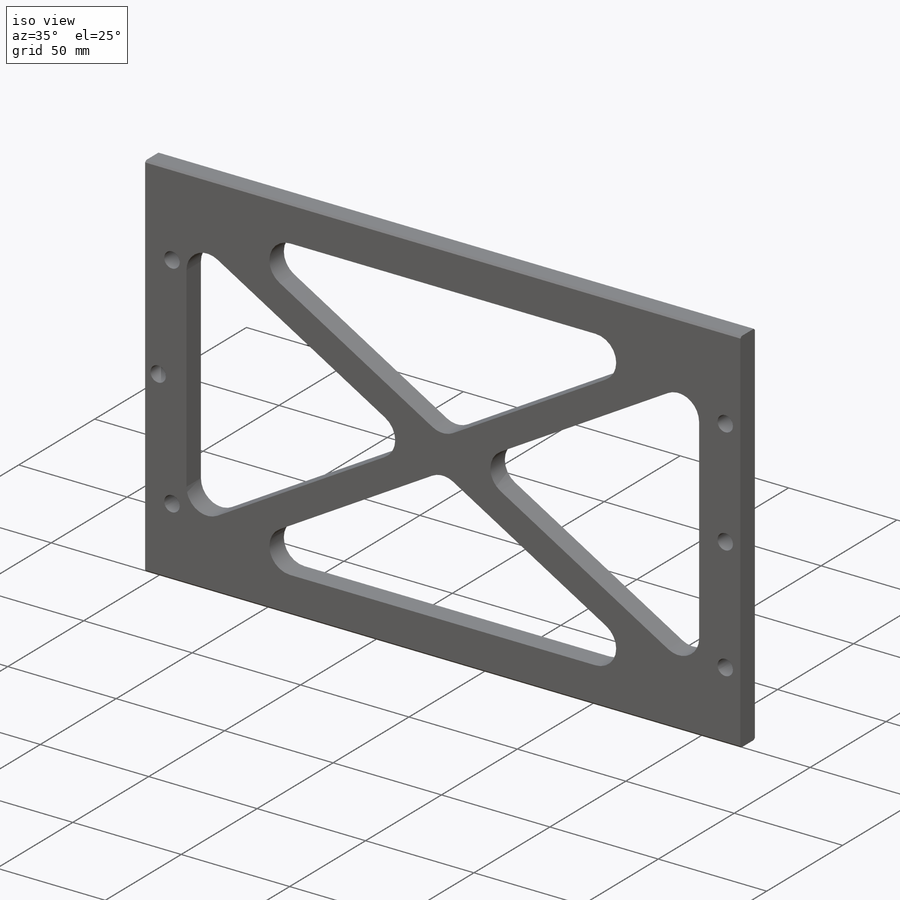
[diagram: iso view]
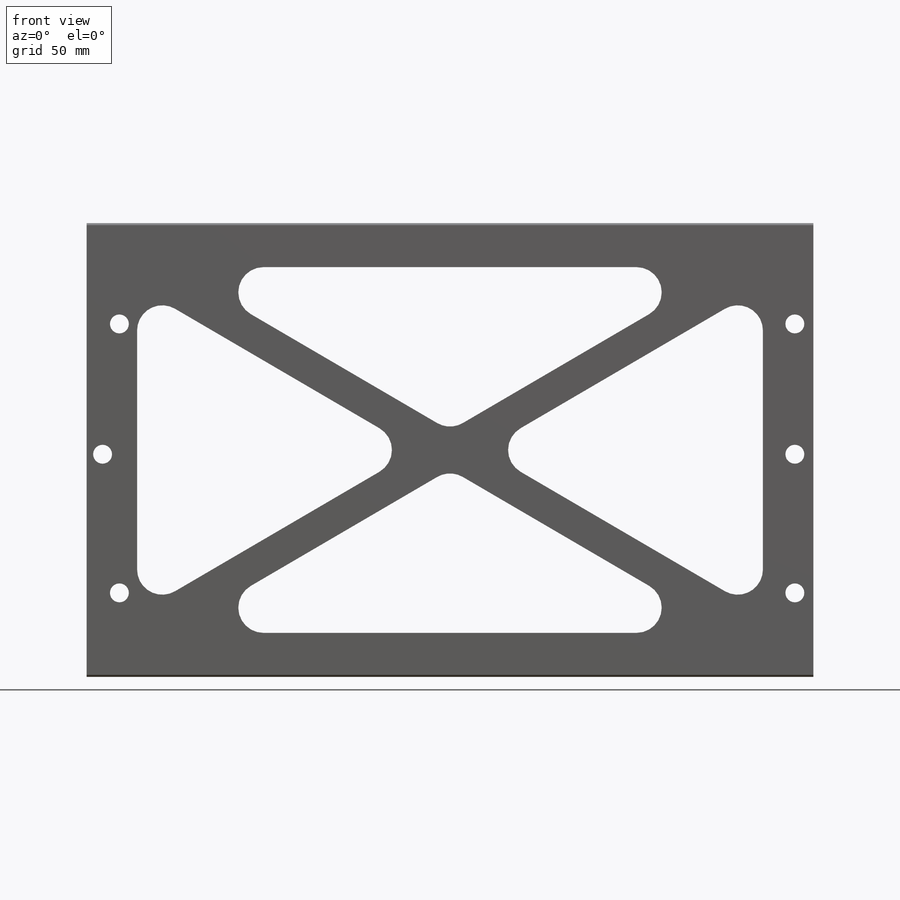
[diagram: front view]
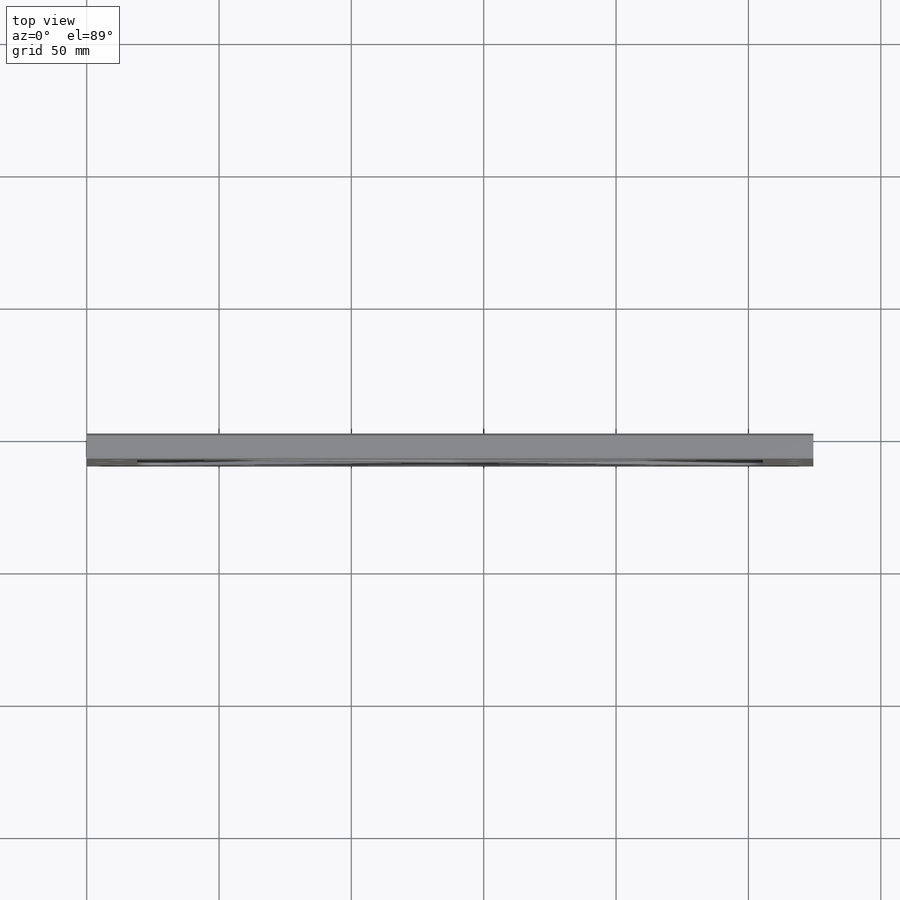
[diagram: top view]
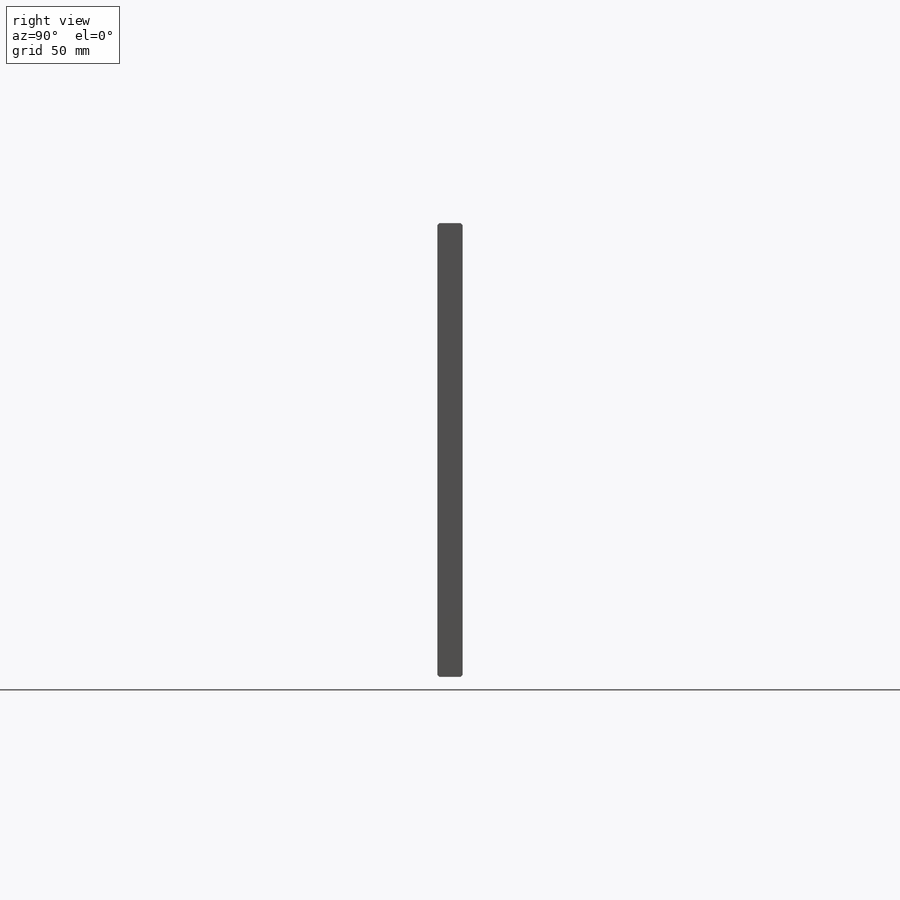
[diagram: right view]
SOLIDWORKS PART (.sldprt)
format: sldprt  version: not decoded by parser v0  size: 573,440 bytes
history: native  units: mm
features: sketch x4, material x1, extrude x1, hole x1, chamfer x1, cut_extrude x1 + 1 further entry (+13 scaffold rows collapsed)
feature tree (23):
  scaffold x13  (default folders/planes/origin — collapsed)
  material  "6061-T6 Al"
  "Origin"  ID=-1
  sketch  "Sketch1"  dims[D1=274.5232mm D2=171.45mm]
  extrude  "Boss-Extrude1"  Depth=9.525mm
  hole  "9/32 (0.28125) Diameter Hole1"  Diameter=7.14375mm Depth=9.525mm
  sketch  "Sketch4"  dims[c1.D1=0.0mm c1.D2=12.3698mm c1.D3=278.765mm c1.D4=0.0mm c1.D5=38.1mm c1.D6=~93.473216mm c1.D7=~145.848016mm c2.D6=49.2252mm c2.D7=52.3748mm c2.D8=6.35mm c2.D2=6.0198mm c2.D3=6.985mm]
  sketch  "Sketch5"  dims[hole-wizard template sketch: 60 standard entries collapsed; hole parameters kept: c18.Thru Hole Depth=9.525mm]
  chamfer  "Chamfer1"  Distance=0.762mm Angle=45deg
  sketch  "Sketch6"  dims[c1.D7=9.525mm c1.D1=127.0mm c1.D2=25.4mm c1.D3=114.3mm c1.D4=25.4mm c1.D5=~42.557287mm c1.D6=139.7mm c2.D3=~108.532586mm c3.D3=~177.702039deg c4.D3=19.05mm c4.D5=~30.508841mm c4.D1=15.875mm c4.web width=6.35mm c4.D4=9.525mm]
  cut_extrude  "Cut-Extrude1"  [1 undecoded]
decode coverage: 7 of 8 modeling features carry decoded parameters; 1 rows unclassified (native names shown)
note: ~ marks probable driven/reference dimensions
note: 1 parameter value undecoded
note: suppression state not decoded; provenance and decode notes live in map.json
